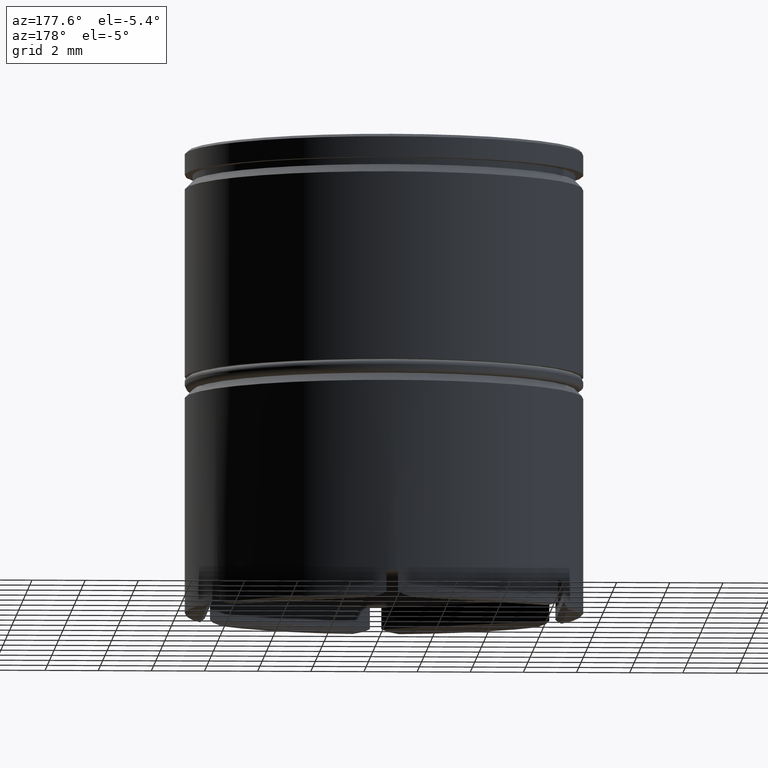
[diagram: clean part render]
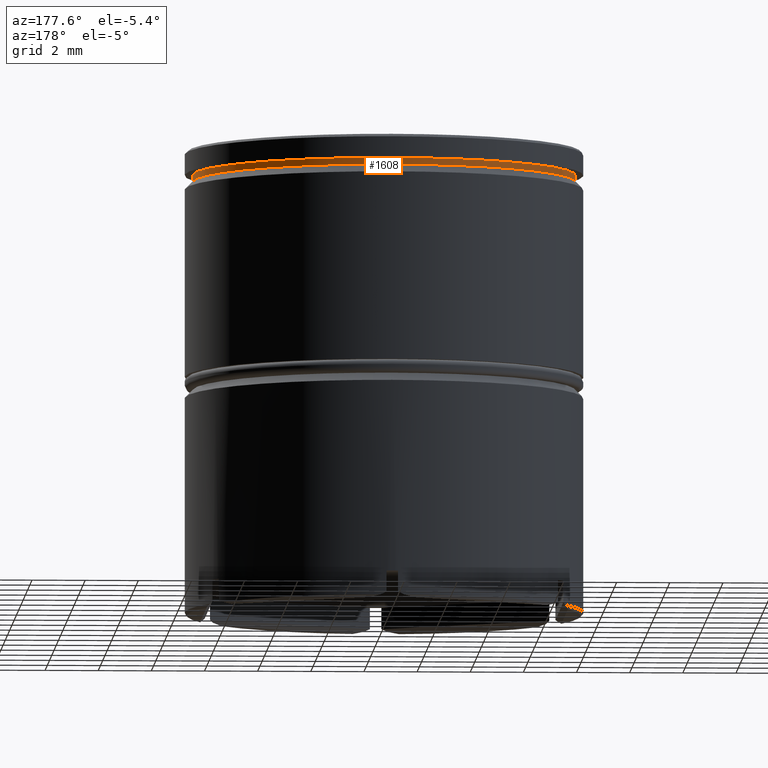
[diagram: same view with one face highlighted and labeled with its STEP entity id]
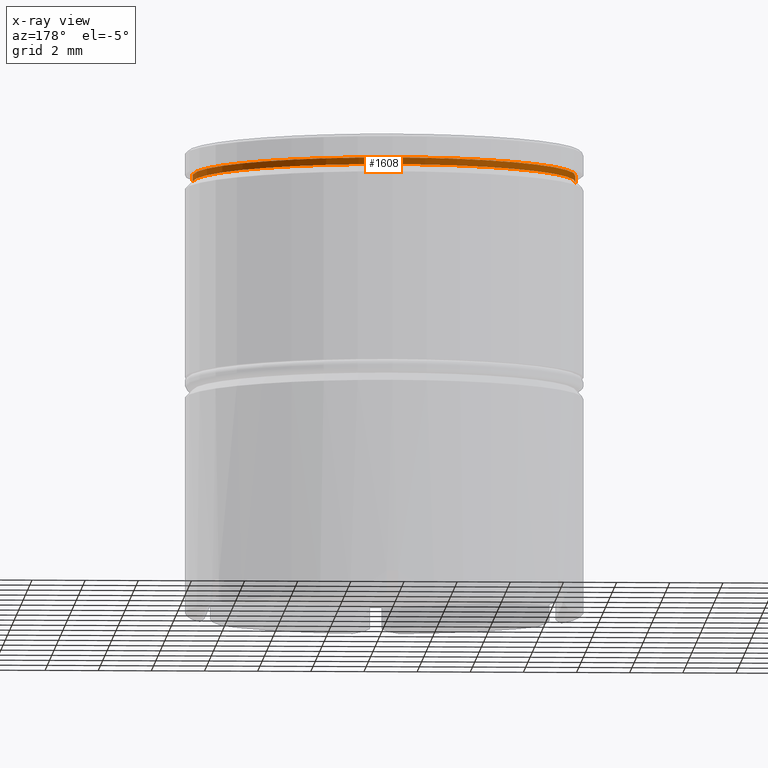
[diagram: x-ray of the same camera — body ghosted, the highlighted face saturated]
A machine part, auxiliary view. The second image highlights one B-rep face of the part: STEP entity #1608.
The next image is the same camera in x-ray: the body ghosted, the highlighted face saturated — about 0% of this face is hidden behind the body in this view.
In plain terms, the highlighted cylindrical surface (partial cylindrical patch) has radius 7.2 mm, axis along (-0, -0, 1).
Its self-contained STEP definition (entity closure, byte-faithful):
#20 = VERTEX_POINT ( 'NONE', #1243 ) ;
#45 = CARTESIAN_POINT ( 'NONE',  ( 0.000000000000000000, 0.000000000000000000, -1.125000000000000222 ) ) ;
#46 = EDGE_LOOP ( 'NONE', ( #1050, #595, #165, #823 ) ) ;
#87 = AXIS2_PLACEMENT_3D ( 'NONE', #1201, #1418, #1189 ) ;
#105 = AXIS2_PLACEMENT_3D ( 'NONE', #45, #403, #171 ) ;
#165 = ORIENTED_EDGE ( 'NONE', *, *, #199, .F. ) ;
#167 = VERTEX_POINT ( 'NONE', #375 ) ;
#171 = DIRECTION ( 'NONE',  ( 1.000000000000000000, 0.000000000000000000, 0.000000000000000000 ) ) ;
#199 = EDGE_CURVE ( 'NONE', #961, #167, #924, .T. ) ;
#320 = DIRECTION ( 'NONE',  ( -0.000000000000000000, -0.000000000000000000, 1.000000000000000000 ) ) ;
#331 = EDGE_CURVE ( 'NONE', #20, #1186, #824, .T. ) ;
#371 = CARTESIAN_POINT ( 'NONE',  ( -7.200000000000000178, 8.817456953860942303E-16, 0.000000000000000000 ) ) ;
#375 = CARTESIAN_POINT ( 'NONE',  ( -7.200000000000000178, 8.817456953860942303E-16, -0.8749999999999998890 ) ) ;
#403 = DIRECTION ( 'NONE',  ( -0.000000000000000000, -0.000000000000000000, 1.000000000000000000 ) ) ;
#440 = EDGE_CURVE ( 'NONE', #20, #961, #845, .T. ) ;
#442 = AXIS2_PLACEMENT_3D ( 'NONE', #1505, #880, #1520 ) ;
#547 = LINE ( 'NONE', #371, #1485 ) ;
#571 = CYLINDRICAL_SURFACE ( 'NONE', #87, 7.200000000000000178 ) ;
#595 = ORIENTED_EDGE ( 'NONE', *, *, #1053, .T. ) ;
#767 = DIRECTION ( 'NONE',  ( -0.000000000000000000, -0.000000000000000000, 1.000000000000000000 ) ) ;
#823 = ORIENTED_EDGE ( 'NONE', *, *, #440, .F. ) ;
#824 = CIRCLE ( 'NONE', #105, 7.200000000000000178 ) ;
#845 = LINE ( 'NONE', #1603, #1595 ) ;
#880 = DIRECTION ( 'NONE',  ( -0.000000000000000000, -0.000000000000000000, 1.000000000000000000 ) ) ;
#898 = CARTESIAN_POINT ( 'NONE',  ( 7.200000000000000178, 0.000000000000000000, -0.8749999999999998890 ) ) ;
#924 = CIRCLE ( 'NONE', #442, 7.200000000000000178 ) ;
#961 = VERTEX_POINT ( 'NONE', #898 ) ;
#1050 = ORIENTED_EDGE ( 'NONE', *, *, #331, .T. ) ;
#1053 = EDGE_CURVE ( 'NONE', #1186, #167, #547, .T. ) ;
#1138 = CARTESIAN_POINT ( 'NONE',  ( -7.200000000000000178, 8.817456953860942303E-16, -1.125000000000000222 ) ) ;
#1186 = VERTEX_POINT ( 'NONE', #1138 ) ;
#1189 = DIRECTION ( 'NONE',  ( 1.000000000000000000, 0.000000000000000000, 0.000000000000000000 ) ) ;
#1201 = CARTESIAN_POINT ( 'NONE',  ( 0.000000000000000000, 0.000000000000000000, 0.000000000000000000 ) ) ;
#1243 = CARTESIAN_POINT ( 'NONE',  ( 7.200000000000000178, 0.000000000000000000, -1.125000000000000222 ) ) ;
#1418 = DIRECTION ( 'NONE',  ( -0.000000000000000000, -0.000000000000000000, 1.000000000000000000 ) ) ;
#1485 = VECTOR ( 'NONE', #767, 1000.000000000000000 ) ;
#1505 = CARTESIAN_POINT ( 'NONE',  ( 0.000000000000000000, 0.000000000000000000, -0.8749999999999998890 ) ) ;
#1520 = DIRECTION ( 'NONE',  ( 1.000000000000000000, 0.000000000000000000, 0.000000000000000000 ) ) ;
#1581 = FACE_OUTER_BOUND ( 'NONE', #46, .T. ) ;
#1595 = VECTOR ( 'NONE', #320, 1000.000000000000000 ) ;
#1603 = CARTESIAN_POINT ( 'NONE',  ( 7.200000000000000178, 0.000000000000000000, 0.000000000000000000 ) ) ;
#1608 = ADVANCED_FACE ( 'NONE', ( #1581 ), #571, .T. ) ;